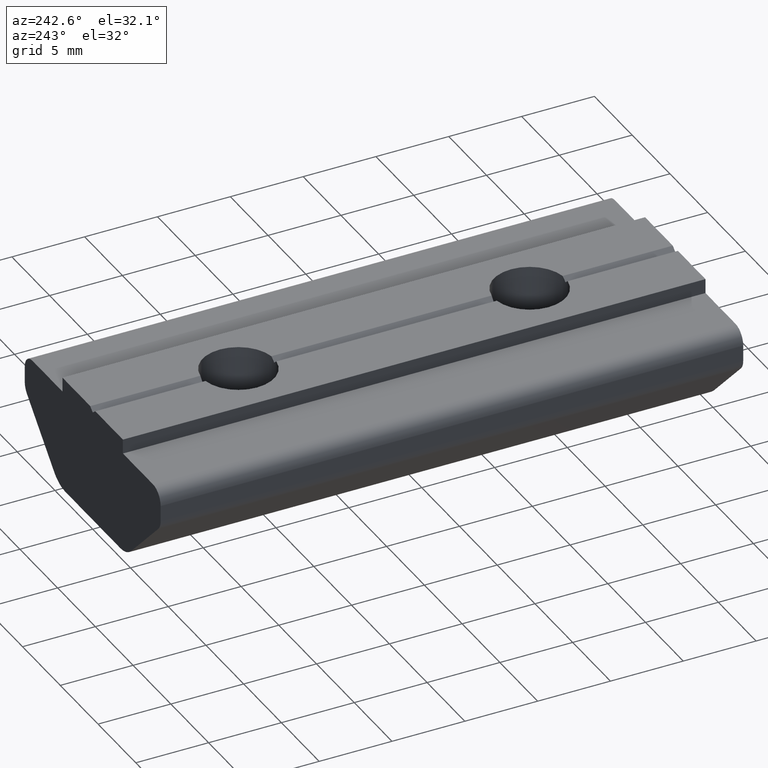
[diagram: clean part render]
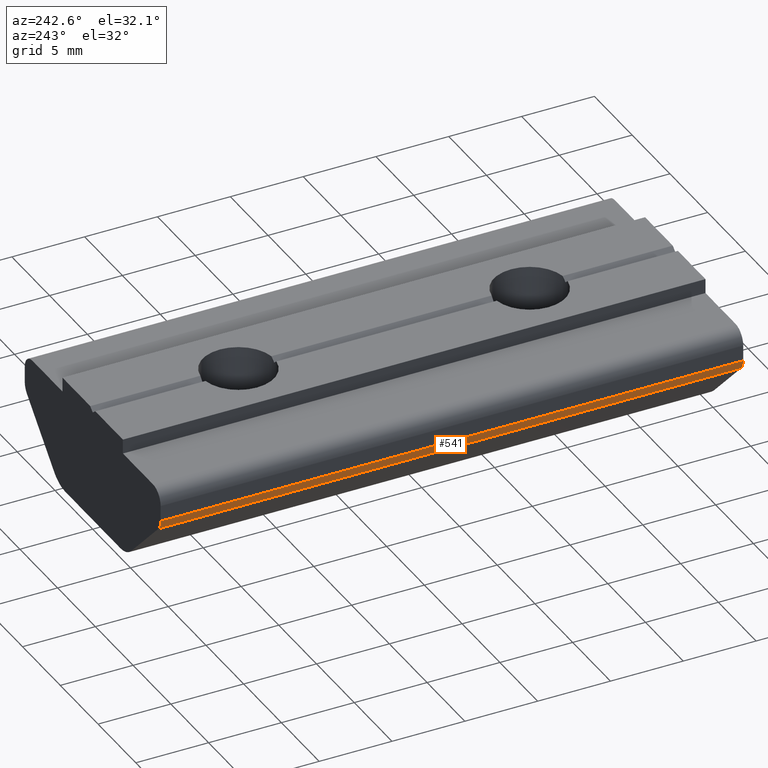
[diagram: same view with one face highlighted and labeled with its STEP entity id]
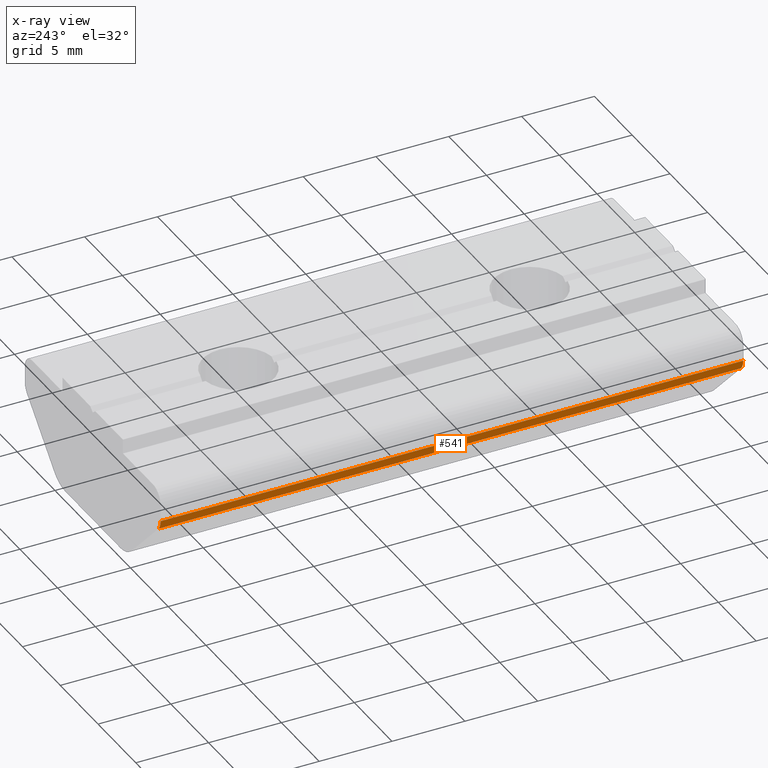
[diagram: x-ray of the same camera — body ghosted, the highlighted face saturated]
A machine part, auxiliary view. The second image highlights one B-rep face of the part: STEP entity #541.
The next image is the same camera in x-ray: the body ghosted, the highlighted face saturated — about 0% of this face is hidden behind the body in this view.
In plain terms, the highlighted cylindrical surface (edge-blend (fillet) strip) has radius 1 mm, axis along (0, -1, 0).
Its self-contained STEP definition (entity closure, byte-faithful):
#46=FACE_OUTER_BOUND('',#73,.T.);
#73=EDGE_LOOP('',(#419,#420,#421,#422));
#112=LINE('',#880,#165);
#114=LINE('',#886,#167);
#165=VECTOR('',#714,40.);
#167=VECTOR('',#720,40.);
#208=CIRCLE('',#610,0.999999764990546);
#209=CIRCLE('',#611,0.999999764990546);
#254=VERTEX_POINT('',#877);
#255=VERTEX_POINT('',#879);
#256=VERTEX_POINT('',#883);
#257=VERTEX_POINT('',#885);
#318=EDGE_CURVE('',#254,#255,#112,.T.);
#320=EDGE_CURVE('',#254,#256,#208,.T.);
#321=EDGE_CURVE('',#256,#257,#114,.T.);
#322=EDGE_CURVE('',#255,#257,#209,.T.);
#419=ORIENTED_EDGE('',*,*,#320,.T.);
#420=ORIENTED_EDGE('',*,*,#321,.T.);
#421=ORIENTED_EDGE('',*,*,#322,.F.);
#422=ORIENTED_EDGE('',*,*,#318,.F.);
#526=CYLINDRICAL_SURFACE('',#609,0.999999764990546);
#541=ADVANCED_FACE('',(#46),#526,.T.);
#609=AXIS2_PLACEMENT_3D('',#882,#716,#717);
#610=AXIS2_PLACEMENT_3D('',#884,#718,#719);
#611=AXIS2_PLACEMENT_3D('',#887,#721,#722);
#714=DIRECTION('',(0.,-1.,0.));
#716=DIRECTION('center_axis',(0.,-1.,0.));
#717=DIRECTION('ref_axis',(-0.923879531736151,0.,-0.382683434236432));
#718=DIRECTION('center_axis',(0.,-1.,0.));
#719=DIRECTION('ref_axis',(1.,0.,0.));
#720=DIRECTION('',(0.,-1.,0.));
#721=DIRECTION('center_axis',(0.,-1.,0.));
#722=DIRECTION('ref_axis',(1.,0.,0.));
#877=CARTESIAN_POINT('',(-8.99999799398435,30.,4.91421247904463));
#879=CARTESIAN_POINT('',(-8.99999799398435,-10.,4.91421247904464));
#880=CARTESIAN_POINT('',(-8.99999799398435,30.,4.91421247904463));
#882=CARTESIAN_POINT('Origin',(-7.9999982289938,30.,4.91421247602898));
#883=CARTESIAN_POINT('',(-8.70710483900666,30.,4.20710585602228));
#884=CARTESIAN_POINT('Origin',(-7.9999982289938,30.,4.91421247602898));
#885=CARTESIAN_POINT('',(-8.70710483900666,-10.,4.20710585602228));
#886=CARTESIAN_POINT('',(-8.70710483900666,30.,4.20710585602228));
#887=CARTESIAN_POINT('Origin',(-7.9999982289938,-10.,4.91421247602898));